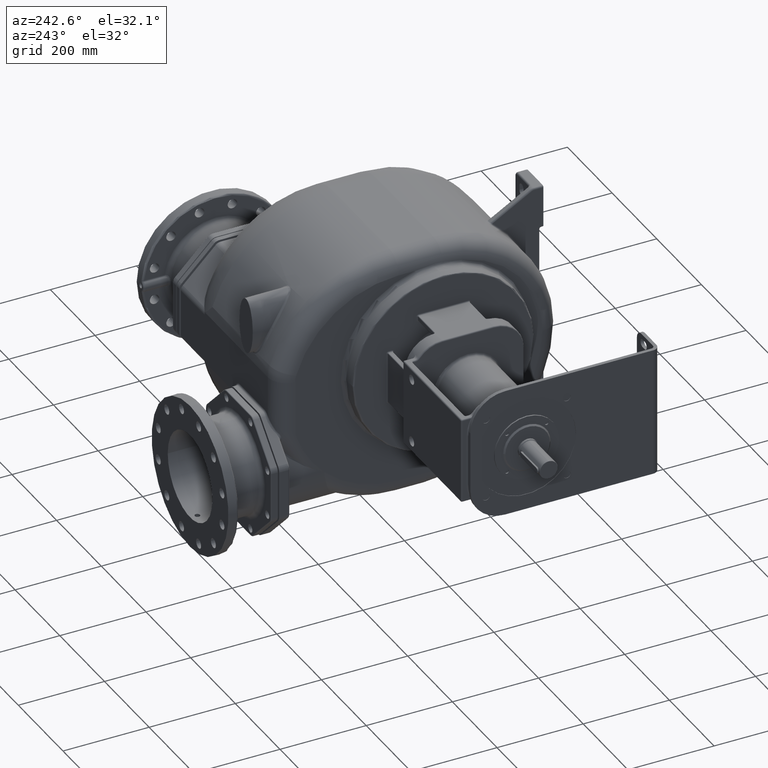
[diagram: clean part render]
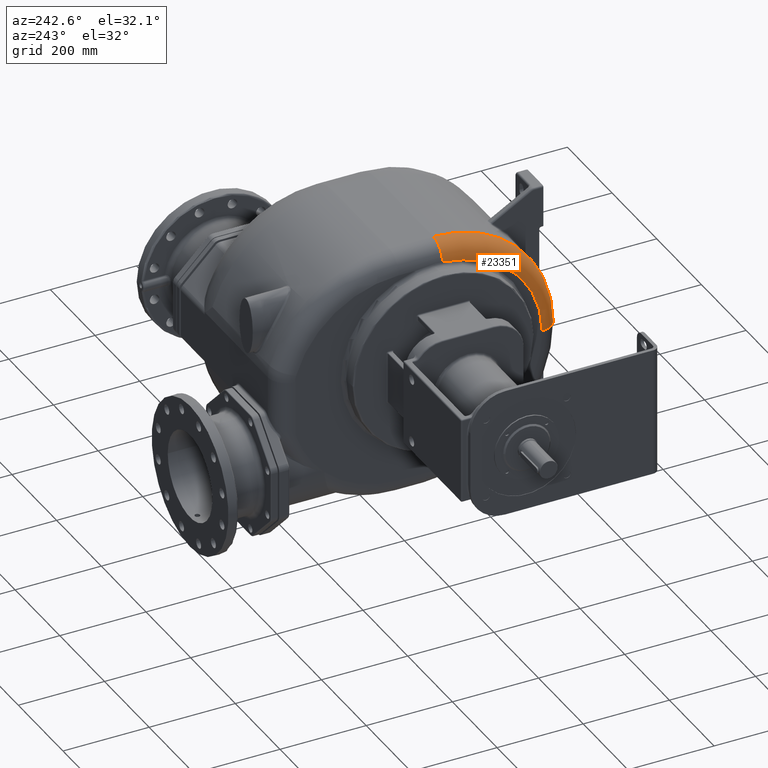
[diagram: same view with one face highlighted and labeled with its STEP entity id]
A machine part, auxiliary view. The second image highlights one B-rep face of the part: STEP entity #23351.
In plain terms, the highlighted toroidal blend (fillet) surface has major radius 231 mm and minor (blend) radius 42 mm.
Its self-contained STEP definition (entity closure, byte-faithful):
#1497=CARTESIAN_POINT('',(-1.2E2,2.92E2,2.13E2));
#1498=DIRECTION('',(0.E0,1.E0,0.E0));
#1499=DIRECTION('',(-9.963713735402E-1,0.E0,8.511219648009E-2));
#1500=AXIS2_PLACEMENT_3D('',#1497,#1498,#1499);
#1556=CARTESIAN_POINT('',(-1.62E2,2.92E2,-1.8E1));
#1557=DIRECTION('',(-1.E0,0.E0,0.E0));
#1558=DIRECTION('',(0.E0,-1.E0,0.E0));
#1559=AXIS2_PLACEMENT_3D('',#1556,#1557,#1558);
#2180=CARTESIAN_POINT('',(-1.620000002137E2,2.458049913749E2,2.083338668808E2));
#2181=CARTESIAN_POINT('',(-1.620000000357E2,2.468794707422E2,2.086467807986E2));
#2182=CARTESIAN_POINT('',(-1.619993994758E2,2.490334268250E2,2.092561971235E2));
#2183=CARTESIAN_POINT('',(-1.619967460740E2,2.522784253099E2,2.101211754860E2));
#2184=CARTESIAN_POINT('',(-1.619923925050E2,2.555364626476E2,2.109365168783E2));
#2185=CARTESIAN_POINT('',(-1.619863914309E2,2.588065090184E2,2.117020322349E2));
#2186=CARTESIAN_POINT('',(-1.619787968826E2,2.620874807293E2,2.124174681504E2));
#2187=CARTESIAN_POINT('',(-1.619696635941E2,2.653785059657E2,2.130826592654E2));
#2188=CARTESIAN_POINT('',(-1.619590456904E2,2.686791766943E2,2.136975286590E2));
#2189=CARTESIAN_POINT('',(-1.619469981568E2,2.719890267404E2,2.142619668066E2));
#2190=CARTESIAN_POINT('',(-1.619335755766E2,2.753076812733E2,2.147758837221E2));
#2191=CARTESIAN_POINT('',(-1.619188287278E2,2.786348263678E2,2.152392364530E2));
#2192=CARTESIAN_POINT('',(-1.619028132438E2,2.819692526955E2,2.156518318069E2));
#2193=CARTESIAN_POINT('',(-1.618855891679E2,2.853092688271E2,2.160134604575E2));
#2194=CARTESIAN_POINT('',(-1.618672184102E2,2.886533881552E2,2.163239703069E2));
#2195=CARTESIAN_POINT('',(-1.618542512348E2,2.908842712851E2,2.164968275235E2));
#2196=CARTESIAN_POINT('',(-1.618475984433E2,2.92E2,2.165747123166E2));
#2198=CARTESIAN_POINT('',(-1.2E2,6.1E1,-1.8E1));
#2199=DIRECTION('',(0.E0,0.E0,1.E0));
#2200=DIRECTION('',(-1.E0,0.E0,0.E0));
#2201=AXIS2_PLACEMENT_3D('',#2198,#2199,#2200);
#2227=CARTESIAN_POINT('',(-1.2E2,2.92E2,-1.8E1));
#2228=DIRECTION('',(-1.E0,0.E0,0.E0));
#2229=DIRECTION('',(0.E0,-1.E0,0.E0));
#2230=AXIS2_PLACEMENT_3D('',#2227,#2228,#2229);
#20095=CARTESIAN_POINT('',(-1.2E2,2.92E2,2.55E2));
#20097=VERTEX_POINT('',#20095);
#20318=CARTESIAN_POINT('',(-1.62E2,6.1E1,-1.8E1));
#20319=VERTEX_POINT('',#20318);
#20320=CARTESIAN_POINT('',(-1.2E2,1.9E1,-1.8E1));
#20321=VERTEX_POINT('',#20320);
#20582=VERTEX_POINT('',#2180);
#20583=VERTEX_POINT('',#2196);
#23337=CARTESIAN_POINT('',(-1.2E2,2.92E2,-1.8E1));
#23338=DIRECTION('',(-1.E0,0.E0,0.E0));
#23339=DIRECTION('',(0.E0,-9.999847542266E-1,-5.521894095270E-3));
#23340=AXIS2_PLACEMENT_3D('',#23337,#23338,#23339);
#23341=TOROIDAL_SURFACE('',#23340,2.31E2,4.2E1);
#23343=ORIENTED_EDGE('',*,*,#23342,.T.);
#23344=ORIENTED_EDGE('',*,*,#22871,.T.);
#23346=ORIENTED_EDGE('',*,*,#23345,.F.);
#23347=ORIENTED_EDGE('',*,*,#23329,.F.);
#23348=ORIENTED_EDGE('',*,*,#22897,.T.);
#23349=EDGE_LOOP('',(#23343,#23344,#23346,#23347,#23348));
#23350=FACE_OUTER_BOUND('',#23349,.F.);
#23351=ADVANCED_FACE('',(#23350),#23341,.T.);
#1501=CIRCLE('',#1500,4.2E1);
#1560=CIRCLE('',#1559,2.31E2);
#2197=B_SPLINE_CURVE_WITH_KNOTS('',3,(#2180,#2181,#2182,#2183,#2184,#2185,#2186,
#2187,#2188,#2189,#2190,#2191,#2192,#2193,#2194,#2195,#2196),.UNSPECIFIED.,.F.,
.F.,(4,1,1,1,1,1,1,1,1,1,1,1,1,1,4),(0.E0,7.142857142857E-2,1.428571428571E-1,
2.142857142857E-1,2.857142857143E-1,3.571428571429E-1,4.285714285714E-1,5.E-1,
5.714285714286E-1,6.428571428571E-1,7.142857142857E-1,7.857142857143E-1,
8.571428571429E-1,9.285714285714E-1,1.E0),.UNSPECIFIED.);
#2202=CIRCLE('',#2201,4.2E1);
#2231=CIRCLE('',#2230,2.73E2);
#22871=EDGE_CURVE('',#20583,#20097,#1501,.T.);
#22897=EDGE_CURVE('',#20319,#20582,#1560,.T.);
#23329=EDGE_CURVE('',#20319,#20321,#2202,.T.);
#23342=EDGE_CURVE('',#20582,#20583,#2197,.T.);
#23345=EDGE_CURVE('',#20321,#20097,#2231,.T.);